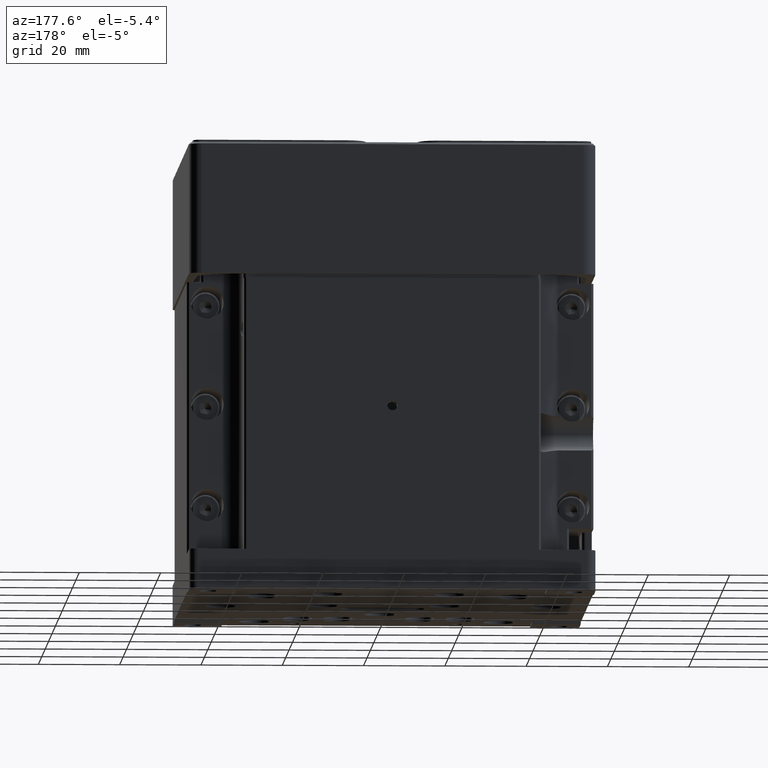
[diagram: clean part render]
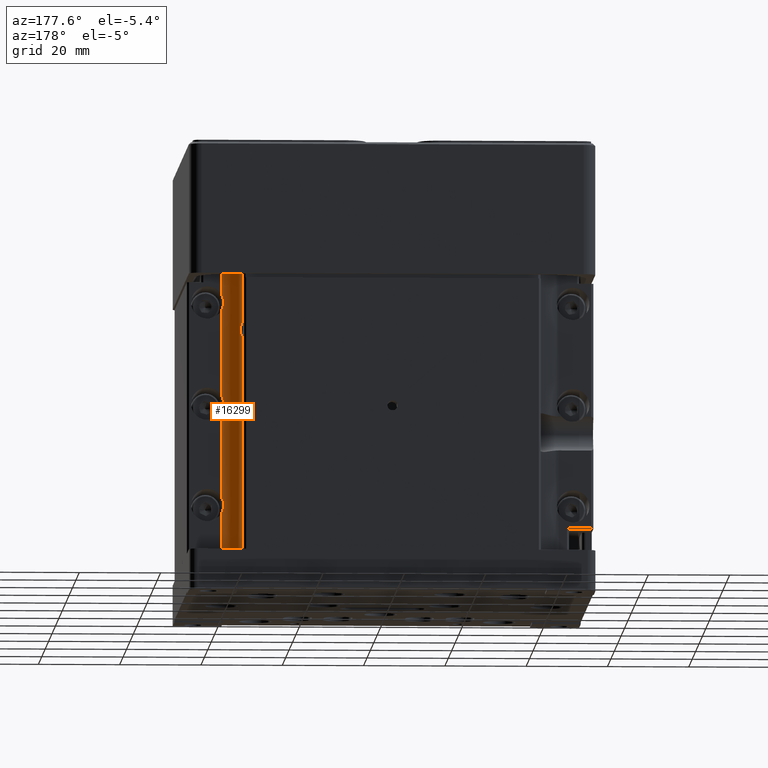
[diagram: same view with one face highlighted and labeled with its STEP entity id]
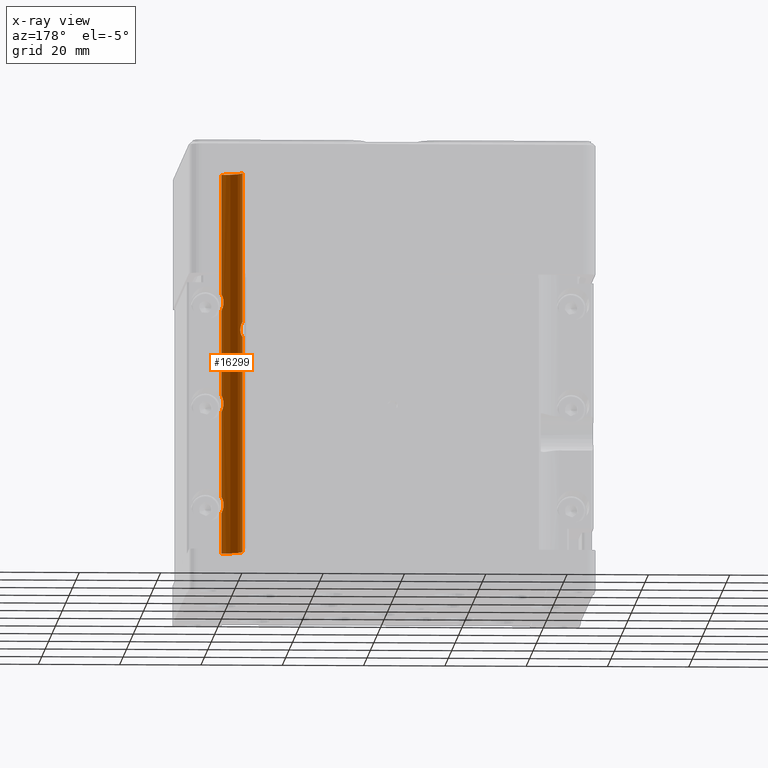
[diagram: x-ray of the same camera — body ghosted, the highlighted face saturated]
A machine part, auxiliary view. The second image highlights one B-rep face of the part: STEP entity #16299.
The next image is the same camera in x-ray: the body ghosted, the highlighted face saturated — about 0% of this face is hidden behind the body in this view.
In plain terms, the highlighted cylindrical surface (edge-blend (fillet) strip) has radius 5 mm, axis along (0, 0, 1).
Its self-contained STEP definition (entity closure, byte-faithful):
#2 = ORIENTED_EDGE ( 'NONE', *, *, #17975, .F. ) ;
#421 = CARTESIAN_POINT ( 'NONE',  ( 41.05300024986248530, 36.51997521928483792, 36.32936305043059377 ) ) ;
#914 = CARTESIAN_POINT ( 'NONE',  ( 41.50000000000000000, 36.50000000000000711, 137.9435699807652043 ) ) ;
#1152 = DIRECTION ( 'NONE',  ( 0.000000000000000000, -0.000000000000000000, -1.000000000000000000 ) ) ;
#1243 = CARTESIAN_POINT ( 'NONE',  ( 41.33529920689156256, 36.50000000000002842, 10.36118726034381332 ) ) ;
#1484 = CARTESIAN_POINT ( 'NONE',  ( 41.08520046601392295, 36.51705665253343369, 12.83824272617138185 ) ) ;
#1538 = CARTESIAN_POINT ( 'NONE',  ( 41.50000000000000000, 41.50000000000000000, 0.000000000000000000 ) ) ;
#1796 = VERTEX_POINT ( 'NONE', #9479 ) ;
#1858 = CARTESIAN_POINT ( 'NONE',  ( 41.50000000000000000, 36.50000000000000711, 38.93649167310373116 ) ) ;
#2110 = VERTEX_POINT ( 'NONE', #6805 ) ;
#3277 = CARTESIAN_POINT ( 'NONE',  ( 36.72818959025497065, 40.00352065023346171, 56.39210260508754402 ) ) ;
#3452 = B_SPLINE_CURVE_WITH_KNOTS ( 'NONE', 3,
 ( #36576, #17969, #47827, #6004, #39982, #14288, #29209, #3277, #7911, #18449, #11340, #33403, #7691, #26272, #26022, #7439, #11109, #22613, #29470, #37755, #34094, #48334, #34334, #40949, #18681, #4236, #41441, #41212 ),
 .UNSPECIFIED., .F., .F.,
 ( 4, 2, 2, 2, 2, 2, 2, 2, 2, 2, 2, 2, 2, 4 ),
 ( 0.000000000000000000, 0.0003476518606642731764, 0.0006953037213285463529, 0.001042955581992819529, 0.001390607442657092706, 0.002085911163985633855, 0.002781214885314175437, 0.003128866745978446228, 0.003476518606642716586, 0.003824170467306987811, 0.004171822327971258168, 0.004519474188635528959, 0.004867126049299799750, 0.005562429770628344802 ),
 .UNSPECIFIED. ) ;
#3497 = EDGE_LOOP ( 'NONE', ( #45380, #29235, #31468, #42312, #29668, #10289, #15347, #41649, #8751, #26573, #47342, #29999, #2, #44551 ) ) ;
#3721 = AXIS2_PLACEMENT_3D ( 'NONE', #1538, #27223, #39207 ) ;
#4058 = CARTESIAN_POINT ( 'NONE',  ( 36.51852431502472029, 41.07000000000000739, 53.25000000000000000 ) ) ;
#4236 = CARTESIAN_POINT ( 'NONE',  ( 36.57601887473332170, 40.60527497342602032, 53.29763379267799195 ) ) ;
#4261 = VERTEX_POINT ( 'NONE', #16162 ) ;
#4329 = CARTESIAN_POINT ( 'NONE',  ( 41.08520046601393005, 36.51705665253344080, 37.83824272617138718 ) ) ;
#5541 = CARTESIAN_POINT ( 'NONE',  ( 41.50000000000000000, 36.50000000000000711, 60.06350832689627595 ) ) ;
#5568 = AXIS2_PLACEMENT_3D ( 'NONE', #12816, #45637, #35592 ) ;
#5572 = DIRECTION ( 'NONE',  ( 0.000000000000000000, -0.000000000000000000, -1.000000000000000000 ) ) ;
#5752 = B_SPLINE_CURVE_WITH_KNOTS ( 'NONE', 3,
 ( #4058, #44695, #11412, #41021 ),
 .UNSPECIFIED., .F., .F.,
 ( 4, 4 ),
 ( 0.005562429770628344802, 0.005993219259823222983 ),
 .UNSPECIFIED. ) ;
#6004 = CARTESIAN_POINT ( 'NONE',  ( 36.57792698657339514, 40.61335821777698385, 56.69325509045478384 ) ) ;
#6532 = CARTESIAN_POINT ( 'NONE',  ( 41.50000000000000000, 36.50000000000000711, 137.9435699807652043 ) ) ;
#6652 = CARTESIAN_POINT ( 'NONE',  ( 41.33529920689154835, 36.50000000000001421, 60.36118726034380444 ) ) ;
#6805 = CARTESIAN_POINT ( 'NONE',  ( 36.51852431502472029, 41.07000000000000739, 53.25000000000000000 ) ) ;
#7380 = LINE ( 'NONE', #22310, #27877 ) ;
#7439 = CARTESIAN_POINT ( 'NONE',  ( 36.97296042457543308, 39.37713602874894292, 54.54159615898070967 ) ) ;
#7691 = CARTESIAN_POINT ( 'NONE',  ( 37.00008180849812334, 39.32038158216298029, 55.23486176597733532 ) ) ;
#7911 = CARTESIAN_POINT ( 'NONE',  ( 36.75714605531084800, 39.91491596347638193, 56.31945110024786771 ) ) ;
#8384 = CIRCLE ( 'NONE', #3721, 4.999999999999997335 ) ;
#8751 = ORIENTED_EDGE ( 'NONE', *, *, #28425, .F. ) ;
#8822 = CARTESIAN_POINT ( 'NONE',  ( 41.50000000000000000, 36.50000000000000711, 137.9435699807652043 ) ) ;
#9479 = CARTESIAN_POINT ( 'NONE',  ( 36.50000000000000711, 41.50000000000000000, 93.50000000000000000 ) ) ;
#9625 = DIRECTION ( 'NONE',  ( 0.000000000000000000, -0.000000000000000000, -1.000000000000000000 ) ) ;
#9835 = CARTESIAN_POINT ( 'NONE',  ( 41.01049860512721779, 36.52397307306545571, 61.66467990513332609 ) ) ;
#10217 = CYLINDRICAL_SURFACE ( 'NONE', #14545, 4.999999999999997335 ) ;
#10289 = ORIENTED_EDGE ( 'NONE', *, *, #43091, .T. ) ;
#10312 = CARTESIAN_POINT ( 'NONE',  ( 41.01049734262520019, 36.52397320480335452, 62.33530207884858498 ) ) ;
#10453 = FACE_OUTER_BOUND ( 'NONE', #3497, .T. ) ;
#10563 = CARTESIAN_POINT ( 'NONE',  ( 41.08520046601391584, 36.51705665253342659, 62.83824272617138718 ) ) ;
#10630 = CARTESIAN_POINT ( 'NONE',  ( 41.50000000000000000, 36.50000000000000711, 35.06350832689628305 ) ) ;
#11109 = CARTESIAN_POINT ( 'NONE',  ( 36.95709791362425278, 39.41087746163952232, 54.43149754111072269 ) ) ;
#11340 = CARTESIAN_POINT ( 'NONE',  ( 36.89690425278357111, 39.54529125192391348, 55.88866002329660887 ) ) ;
#11412 = CARTESIAN_POINT ( 'NONE',  ( 36.50000000000000711, 41.35864015312544950, 53.26781829781776167 ) ) ;
#11738 = EDGE_CURVE ( 'NONE', #18865, #29069, #38676, .T. ) ;
#12264 = CARTESIAN_POINT ( 'NONE',  ( 36.50000000000000711, 41.50000000000000000, 56.69634902069120841 ) ) ;
#12470 = CARTESIAN_POINT ( 'NONE',  ( 41.01049734262520019, 36.52397320480334741, 12.33530207884858498 ) ) ;
#12597 = EDGE_CURVE ( 'NONE', #35705, #2110, #3452, .T. ) ;
#12816 = CARTESIAN_POINT ( 'NONE',  ( 41.50000000000000000, 41.50000000000000000, 93.50000000000000000 ) ) ;
#12925 = EDGE_CURVE ( 'NONE', #17128, #24820, #38353, .T. ) ;
#13276 = VERTEX_POINT ( 'NONE', #14603 ) ;
#13487 = CARTESIAN_POINT ( 'NONE',  ( 41.05300024986249241, 36.51997521928483792, 61.32936305043057246 ) ) ;
#13584 = CARTESIAN_POINT ( 'NONE',  ( 41.50000000000000000, 36.50000000000000711, 93.50000000000000000 ) ) ;
#14225 = CARTESIAN_POINT ( 'NONE',  ( 41.05299548330544468, 36.51997565466325568, 62.67060739816486858 ) ) ;
#14288 = CARTESIAN_POINT ( 'NONE',  ( 36.64705002021124614, 40.29147103855804346, 56.57143817593458124 ) ) ;
#14545 = AXIS2_PLACEMENT_3D ( 'NONE', #25150, #21231, #47679 ) ;
#14603 = CARTESIAN_POINT ( 'NONE',  ( 41.50000000000000000, 36.50000000000000711, 13.93649167310372405 ) ) ;
#14949 = CIRCLE ( 'NONE', #5568, 4.999999999999997335 ) ;
#15343 = CARTESIAN_POINT ( 'NONE',  ( 41.01049860512721068, 36.52397307306544860, 36.66467990513331898 ) ) ;
#15347 = ORIENTED_EDGE ( 'NONE', *, *, #15659, .F. ) ;
#15515 = CARTESIAN_POINT ( 'NONE',  ( 41.50000000000000000, 36.50000000000000711, 10.06350832689626529 ) ) ;
#15659 = EDGE_CURVE ( 'NONE', #17505, #13276, #47676, .T. ) ;
#16162 = CARTESIAN_POINT ( 'NONE',  ( 36.50000000000000711, 41.50000000000000000, 0.000000000000000000 ) ) ;
#16299 = ADVANCED_FACE ( 'NONE', ( #10453 ), #10217, .F. ) ;
#16631 = CARTESIAN_POINT ( 'NONE',  ( 41.33529922549249846, 36.50000000000000000, 13.63881277327538655 ) ) ;
#17128 = VERTEX_POINT ( 'NONE', #13584 ) ;
#17136 = CARTESIAN_POINT ( 'NONE',  ( 41.50000000000000000, 36.50000000000000711, 10.06350832689626529 ) ) ;
#17505 = VERTEX_POINT ( 'NONE', #15515 ) ;
#17673 = CARTESIAN_POINT ( 'NONE',  ( 36.51852431502472029, 41.07000000000000739, 56.75000000000000000 ) ) ;
#17969 = CARTESIAN_POINT ( 'NONE',  ( 36.52864199316015714, 40.95278844739517865, 56.75000000000000711 ) ) ;
#17975 = EDGE_CURVE ( 'NONE', #19489, #35705, #25283, .T. ) ;
#18449 = CARTESIAN_POINT ( 'NONE',  ( 36.84164046149648897, 39.67563540266329625, 56.08117006950897832 ) ) ;
#18681 = CARTESIAN_POINT ( 'NONE',  ( 36.64716020503751537, 40.29108450534435804, 53.42879960994008570 ) ) ;
#18865 = VERTEX_POINT ( 'NONE', #5541 ) ;
#19000 = CARTESIAN_POINT ( 'NONE',  ( 41.08520553262000163, 36.51705623715808002, 36.16173477565948247 ) ) ;
#19253 = CARTESIAN_POINT ( 'NONE',  ( 41.21152686127312137, 36.50761424987426551, 38.32691232349846899 ) ) ;
#19489 = VERTEX_POINT ( 'NONE', #29609 ) ;
#19572 = DIRECTION ( 'NONE',  ( -0.000000000000000000, -0.000000000000000000, -1.000000000000000000 ) ) ;
#20115 = CARTESIAN_POINT ( 'NONE',  ( 41.50000000000000000, 36.50000000000000711, 0.000000000000000000 ) ) ;
#20748 = LINE ( 'NONE', #6532, #30791 ) ;
#21231 = DIRECTION ( 'NONE',  ( 0.000000000000000000, 0.000000000000000000, 1.000000000000000000 ) ) ;
#22310 = CARTESIAN_POINT ( 'NONE',  ( 36.50000000000000711, 41.50000000000000000, 137.9435699807652043 ) ) ;
#22314 = CARTESIAN_POINT ( 'NONE',  ( 41.50000000000000000, 36.50000000000000711, 63.93649167310372405 ) ) ;
#22613 = CARTESIAN_POINT ( 'NONE',  ( 36.91709824903924186, 39.50014903362182395, 54.21804694103773414 ) ) ;
#22829 = VERTEX_POINT ( 'NONE', #10630 ) ;
#23374 = EDGE_CURVE ( 'NONE', #18865, #24820, #31238, .T. ) ;
#23533 = CARTESIAN_POINT ( 'NONE',  ( 36.50598287650285556, 41.21529039779364467, 56.75000000000000000 ) ) ;
#24021 = CARTESIAN_POINT ( 'NONE',  ( 41.05300024986249241, 36.51997521928485213, 11.32936305043058667 ) ) ;
#24527 = CARTESIAN_POINT ( 'NONE',  ( 41.33529922549251978, 36.50000000000002132, 63.63881277327543273 ) ) ;
#24570 = CARTESIAN_POINT ( 'NONE',  ( 41.50000000000000000, 36.50000000000000711, 137.9435699807652043 ) ) ;
#24787 = CARTESIAN_POINT ( 'NONE',  ( 41.50000000000000000, 36.50000000000000711, 63.93649167310372405 ) ) ;
#24820 = VERTEX_POINT ( 'NONE', #22314 ) ;
#25150 = CARTESIAN_POINT ( 'NONE',  ( 41.50000000000000000, 41.50000000000000000, 137.9435699807652043 ) ) ;
#25283 = B_SPLINE_CURVE_WITH_KNOTS ( 'NONE', 3,
 ( #12264, #27178, #23533, #38438 ),
 .UNSPECIFIED., .F., .F.,
 ( 4, 4 ),
 ( -0.0004309342893861555055, 0.000000000000000000 ),
 .UNSPECIFIED. ) ;
#25502 = CARTESIAN_POINT ( 'NONE',  ( 41.21152686127312137, 36.50761424987427972, 63.32691232349849031 ) ) ;
#26022 = CARTESIAN_POINT ( 'NONE',  ( 36.99465222192893776, 39.33147973112392037, 54.76876466245786901 ) ) ;
#26272 = CARTESIAN_POINT ( 'NONE',  ( 37.00035740847852850, 39.31981271608105288, 54.88686010652051550 ) ) ;
#26573 = ORIENTED_EDGE ( 'NONE', *, *, #28604, .F. ) ;
#26667 = EDGE_CURVE ( 'NONE', #17128, #1796, #14949, .T. ) ;
#26913 = CARTESIAN_POINT ( 'NONE',  ( 36.50000000000000711, 41.50000000000000000, 137.9435699807652043 ) ) ;
#27178 = CARTESIAN_POINT ( 'NONE',  ( 36.50000000000000711, 41.35864015312544950, 56.73218170218223833 ) ) ;
#27223 = DIRECTION ( 'NONE',  ( 0.000000000000000000, 0.000000000000000000, 1.000000000000000000 ) ) ;
#27573 = VECTOR ( 'NONE', #31329, 1000.000000000000000 ) ;
#27771 = B_SPLINE_CURVE_WITH_KNOTS ( 'NONE', 3,
 ( #38560, #33700, #41520, #19000, #421, #15343, #30269, #45204, #37841, #4329, #19253, #34190, #1858 ),
 .UNSPECIFIED., .F., .F.,
 ( 4, 2, 2, 1, 2, 2, 4 ),
 ( 0.000000000000000000, 0.001006051888025552175, 0.001509077832038335960, 0.002012103776051119529, 0.002515129720063903531, 0.003018155664076687100, 0.004024207552102254670 ),
 .UNSPECIFIED. ) ;
#27795 = EDGE_CURVE ( 'NONE', #2110, #47371, #5752, .T. ) ;
#27877 = VECTOR ( 'NONE', #37238, 1000.000000000000000 ) ;
#28410 = CARTESIAN_POINT ( 'NONE',  ( 40.98950203047739649, 36.52615249198769476, 61.99999384381534639 ) ) ;
#28425 = EDGE_CURVE ( 'NONE', #4261, #29740, #8384, .T. ) ;
#28604 = EDGE_CURVE ( 'NONE', #47371, #4261, #30835, .T. ) ;
#28711 = VECTOR ( 'NONE', #19572, 1000.000000000000000 ) ;
#29069 = VERTEX_POINT ( 'NONE', #36120 ) ;
#29140 = CARTESIAN_POINT ( 'NONE',  ( 41.21152968157479535, 36.50761411240627297, 60.67308256508487574 ) ) ;
#29209 = CARTESIAN_POINT ( 'NONE',  ( 36.67315889855452582, 40.19186009455199127, 56.51795855445057981 ) ) ;
#29235 = ORIENTED_EDGE ( 'NONE', *, *, #12925, .T. ) ;
#29470 = CARTESIAN_POINT ( 'NONE',  ( 36.89345034376014354, 39.55465519113696615, 54.11734116446167064 ) ) ;
#29609 = CARTESIAN_POINT ( 'NONE',  ( 36.50000000000000711, 41.50000000000000000, 56.69634902069120841 ) ) ;
#29668 = ORIENTED_EDGE ( 'NONE', *, *, #42768, .F. ) ;
#29740 = VERTEX_POINT ( 'NONE', #20115 ) ;
#29999 = ORIENTED_EDGE ( 'NONE', *, *, #12597, .F. ) ;
#30269 = CARTESIAN_POINT ( 'NONE',  ( 40.98950203047739649, 36.52615249198769476, 36.99999384381536771 ) ) ;
#30791 = VECTOR ( 'NONE', #5572, 1000.000000000000000 ) ;
#30835 = LINE ( 'NONE', #26913, #28711 ) ;
#31096 = CARTESIAN_POINT ( 'NONE',  ( 41.01049860512722489, 36.52397307306545571, 11.66467990513331010 ) ) ;
#31238 = B_SPLINE_CURVE_WITH_KNOTS ( 'NONE', 3,
 ( #47768, #6652, #29140, #43851, #13487, #9835, #28410, #10312, #14225, #10563, #25502, #24527, #24787 ),
 .UNSPECIFIED., .F., .F.,
 ( 4, 2, 2, 1, 2, 2, 4 ),
 ( 0.000000000000000000, 0.001006051888025557596, 0.001509077832038343983, 0.002012103776051130371, 0.002515129720063916975, 0.003018155664076682329, 0.004024207552102254670 ),
 .UNSPECIFIED. ) ;
#31323 = CARTESIAN_POINT ( 'NONE',  ( 41.21152968157478824, 36.50761411240628007, 10.67308256508489883 ) ) ;
#31329 = DIRECTION ( 'NONE',  ( 0.000000000000000000, -0.000000000000000000, -1.000000000000000000 ) ) ;
#31468 = ORIENTED_EDGE ( 'NONE', *, *, #23374, .F. ) ;
#31654 = LINE ( 'NONE', #24570, #42131 ) ;
#33403 = CARTESIAN_POINT ( 'NONE',  ( 36.97604013785444721, 39.36853010494093752, 55.46845874916899533 ) ) ;
#33700 = CARTESIAN_POINT ( 'NONE',  ( 41.33529920689154125, 36.50000000000000711, 35.36118726034381865 ) ) ;
#33949 = VECTOR ( 'NONE', #1152, 1000.000000000000000 ) ;
#34094 = CARTESIAN_POINT ( 'NONE',  ( 36.81386397328715532, 39.75433675063915473, 53.84055449251606973 ) ) ;
#34190 = CARTESIAN_POINT ( 'NONE',  ( 41.33529922549250557, 36.50000000000001421, 38.63881277327540431 ) ) ;
#34334 = CARTESIAN_POINT ( 'NONE',  ( 36.72885235660713477, 40.00141599297143102, 53.60951425886788257 ) ) ;
#35011 = CARTESIAN_POINT ( 'NONE',  ( 41.05299548330542336, 36.51997565466325568, 12.67060739816486681 ) ) ;
#35482 = CARTESIAN_POINT ( 'NONE',  ( 40.98950202179889146, 36.52615248800824332, 11.99999384381649215 ) ) ;
#35592 = DIRECTION ( 'NONE',  ( 1.000000000000000000, 0.000000000000000000, 0.000000000000000000 ) ) ;
#35705 = VERTEX_POINT ( 'NONE', #17673 ) ;
#35740 = CARTESIAN_POINT ( 'NONE',  ( 41.50000000000000000, 36.50000000000000711, 13.93649167310372405 ) ) ;
#35920 = EDGE_CURVE ( 'NONE', #1796, #19489, #7380, .T. ) ;
#36120 = CARTESIAN_POINT ( 'NONE',  ( 41.50000000000000000, 36.50000000000000711, 38.93649167310373116 ) ) ;
#36576 = CARTESIAN_POINT ( 'NONE',  ( 36.51852431502472029, 41.07000000000000739, 56.75000000000000000 ) ) ;
#36606 = EDGE_CURVE ( 'NONE', #17505, #29740, #20748, .T. ) ;
#37238 = DIRECTION ( 'NONE',  ( -0.000000000000000000, -0.000000000000000000, -1.000000000000000000 ) ) ;
#37755 = CARTESIAN_POINT ( 'NONE',  ( 36.84202547552095552, 39.68122582763059114, 53.92917657484454708 ) ) ;
#37841 = CARTESIAN_POINT ( 'NONE',  ( 41.05299548330543047, 36.51997565466325568, 37.67060739816485437 ) ) ;
#38353 = LINE ( 'NONE', #914, #33949 ) ;
#38438 = CARTESIAN_POINT ( 'NONE',  ( 36.51852431502472029, 41.07000000000000739, 56.75000000000000000 ) ) ;
#38560 = CARTESIAN_POINT ( 'NONE',  ( 41.50000000000000000, 36.50000000000000711, 35.06350832689628305 ) ) ;
#38676 = LINE ( 'NONE', #8822, #27573 ) ;
#38920 = CARTESIAN_POINT ( 'NONE',  ( 41.21152686127311426, 36.50761424987426551, 13.32691232349845656 ) ) ;
#39207 = DIRECTION ( 'NONE',  ( 1.000000000000000000, 0.000000000000000000, 0.000000000000000000 ) ) ;
#39982 = CARTESIAN_POINT ( 'NONE',  ( 36.59938894399244447, 40.50216382371053925, 56.65924300856909923 ) ) ;
#39989 = CARTESIAN_POINT ( 'NONE',  ( 36.50000000000000711, 41.50000000000000000, 53.30365097930879159 ) ) ;
#40949 = CARTESIAN_POINT ( 'NONE',  ( 36.67379515374447152, 40.18952274222147025, 53.48339781916821067 ) ) ;
#41021 = CARTESIAN_POINT ( 'NONE',  ( 36.50000000000000711, 41.50000000000000000, 53.30365097930879159 ) ) ;
#41212 = CARTESIAN_POINT ( 'NONE',  ( 36.51852431502472029, 41.07000000000000739, 53.25000000000000000 ) ) ;
#41441 = CARTESIAN_POINT ( 'NONE',  ( 36.53876647295516733, 40.83549809873954217, 53.25000000000001421 ) ) ;
#41520 = CARTESIAN_POINT ( 'NONE',  ( 41.21152968157478824, 36.50761411240627297, 35.67308256508490416 ) ) ;
#41649 = ORIENTED_EDGE ( 'NONE', *, *, #36606, .T. ) ;
#42131 = VECTOR ( 'NONE', #9625, 1000.000000000000000 ) ;
#42312 = ORIENTED_EDGE ( 'NONE', *, *, #11738, .T. ) ;
#42768 = EDGE_CURVE ( 'NONE', #22829, #29069, #27771, .T. ) ;
#43091 = EDGE_CURVE ( 'NONE', #22829, #13276, #31654, .T. ) ;
#43851 = CARTESIAN_POINT ( 'NONE',  ( 41.08520553262000163, 36.51705623715807292, 61.16173477565946826 ) ) ;
#44551 = ORIENTED_EDGE ( 'NONE', *, *, #35920, .F. ) ;
#44695 = CARTESIAN_POINT ( 'NONE',  ( 36.50598287650285556, 41.21529039779365178, 53.25000000000000000 ) ) ;
#45204 = CARTESIAN_POINT ( 'NONE',  ( 41.01049734262520019, 36.52397320480334031, 37.33530207884858498 ) ) ;
#45380 = ORIENTED_EDGE ( 'NONE', *, *, #26667, .F. ) ;
#45637 = DIRECTION ( 'NONE',  ( -0.000000000000000000, -0.000000000000000000, -1.000000000000000000 ) ) ;
#46007 = CARTESIAN_POINT ( 'NONE',  ( 41.08520553262003006, 36.51705623715808002, 11.16173477565947003 ) ) ;
#47342 = ORIENTED_EDGE ( 'NONE', *, *, #27795, .F. ) ;
#47371 = VERTEX_POINT ( 'NONE', #39989 ) ;
#47676 = B_SPLINE_CURVE_WITH_KNOTS ( 'NONE', 3,
 ( #17136, #1243, #31323, #46007, #24021, #31096, #35482, #12470, #35011, #1484, #38920, #16631, #35740 ),
 .UNSPECIFIED., .F., .F.,
 ( 4, 2, 2, 1, 2, 2, 4 ),
 ( 1.734723475976807094E-18, 0.001006051888025559764, 0.001509077832038343767, 0.002012103776051127769, 0.002515129720063911771, 0.003018155664076696207, 0.004024207552102269415 ),
 .UNSPECIFIED. ) ;
#47679 = DIRECTION ( 'NONE',  ( 1.000000000000000000, 0.000000000000000000, 0.000000000000000000 ) ) ;
#47768 = CARTESIAN_POINT ( 'NONE',  ( 41.50000000000000000, 36.50000000000000711, 60.06350832689627595 ) ) ;
#47827 = CARTESIAN_POINT ( 'NONE',  ( 36.54270107723145600, 40.83809079942659537, 56.73834767561390890 ) ) ;
#48334 = CARTESIAN_POINT ( 'NONE',  ( 36.75728845848664861, 39.91447224085434442, 53.68089451961287750 ) ) ;